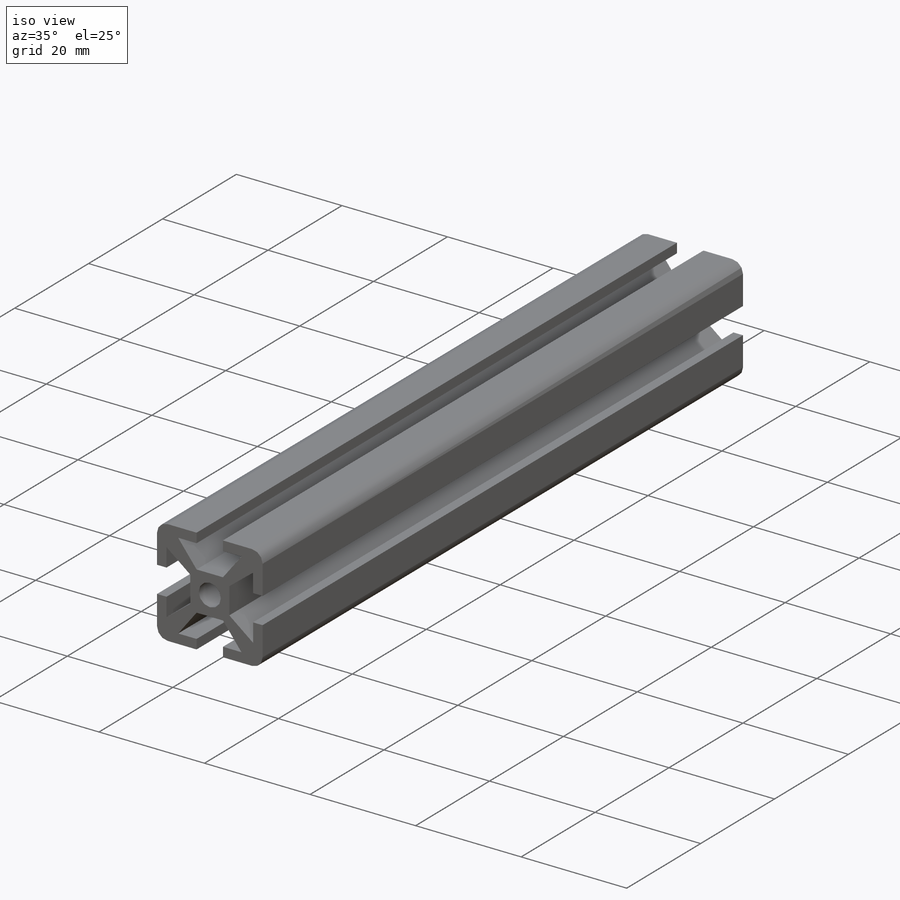
[diagram: iso view]
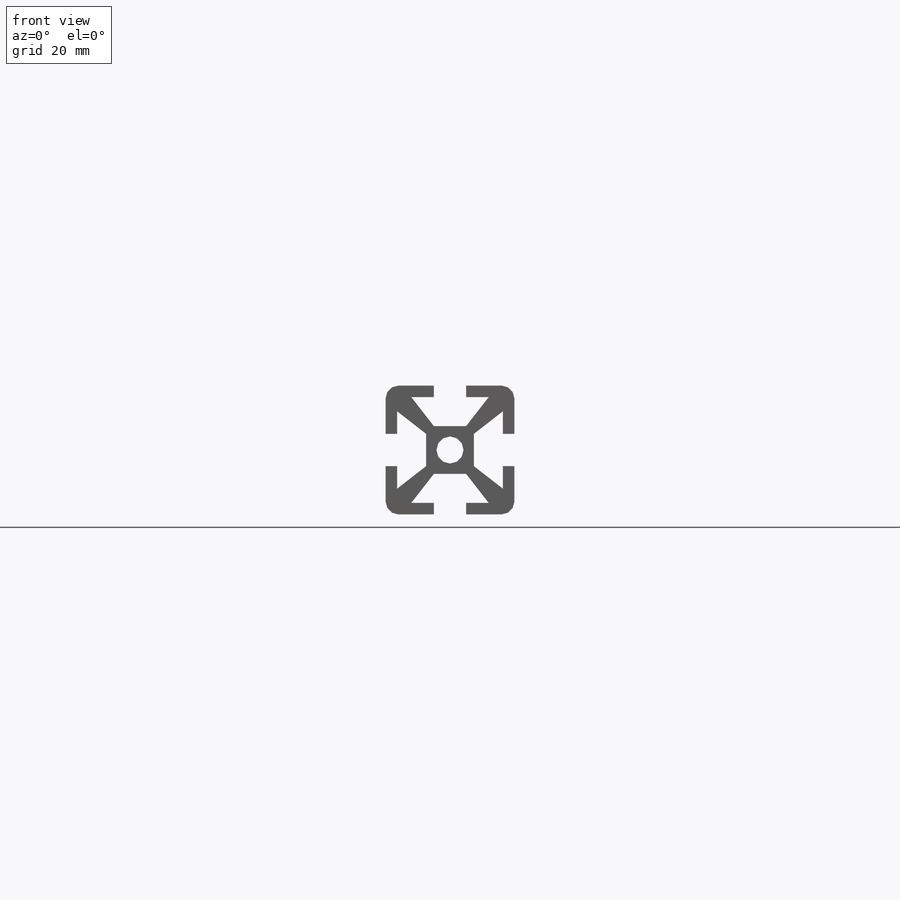
[diagram: front view]
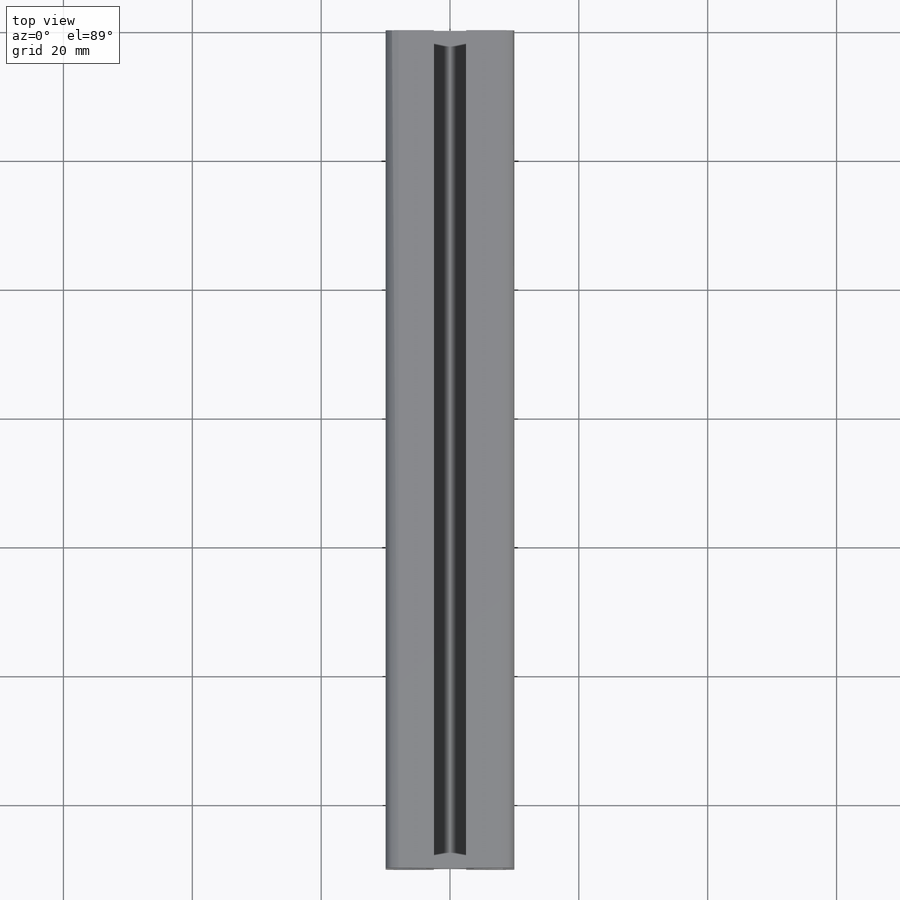
[diagram: top view]
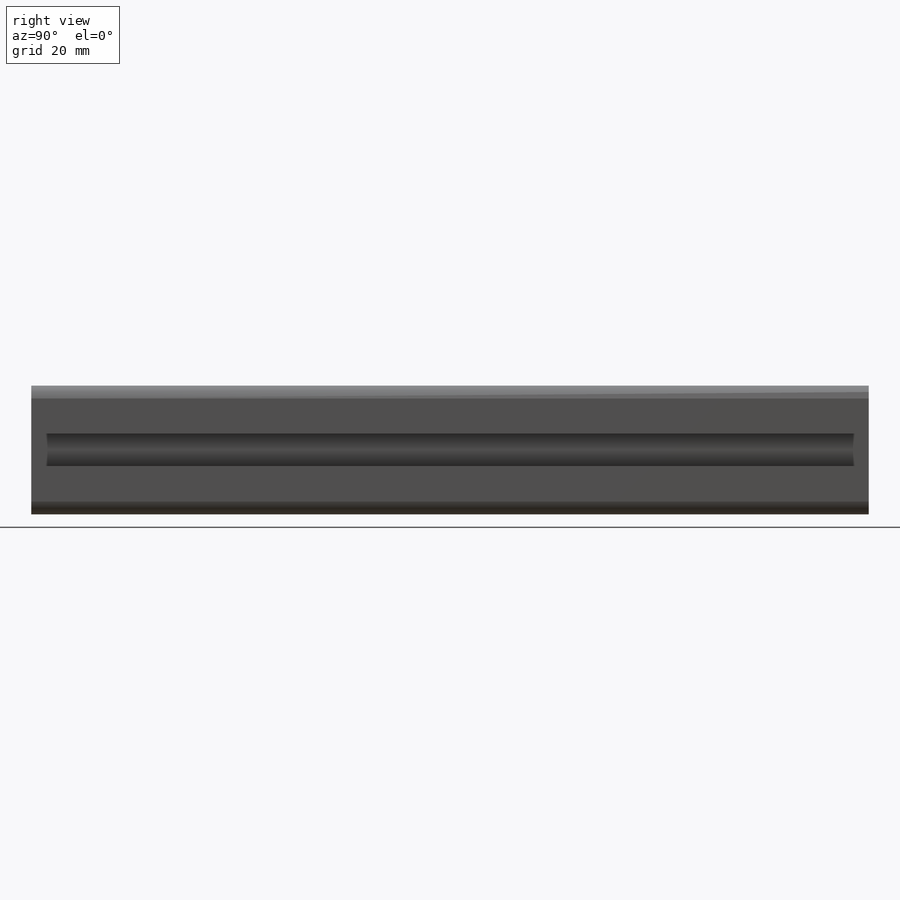
[diagram: right view]
SOLIDWORKS PART (.sldprt)
format: sldprt  version: not decoded by parser v0  size: 326,656 bytes
history: native  units: mm
features: sketch x6, cut_extrude x4, plane x3, material x1, extrude x1 (+8 scaffold rows collapsed)
feature tree (23):
  scaffold x8  (default folders/planes/origin — collapsed)
  material  "Matériau <non spécifié>"
  plane  "Plan de face"
  plane  "Plan de dessus"
  plane  "Plan de droite"
  sketch  "Esquisse1"  dims[c1.D1=2.0mm c1.D2=2.0mm c1.D4=2.0mm c1.D3=20.0mm c2.D4=20.0mm]
  extrude  "Extrusion1"  Depth=130mm
  sketch  "Esquisse2"  dims[D1=4.2mm]
  sketch  "Esquisse3"  dims[c1.D1=5.0mm c1.D2=1.8mm c1.D3=6.3mm c1.D4=12.0mm c2.D3=6.3mm c2.D5=5.0mm c2.D6=3.5mm]
  cut_extrude  "Enlèv. mat.-Extru.1"  Depth=300mm
  sketch  "Esquisse4"  dims[D1=5.0mm D2=5.0mm D3=1.8mm D4=6.3mm]
  sketch  "Esquisse5"  dims[D1=5.0mm D2=6.3mm D3=1.8mm D4=12.0mm]
  cut_extrude  "Enlèv. mat.-Extru.3"  Depth=300mm
  sketch  "Esquisse6"  dims[D1=6.3mm D2=12.0mm D3=1.8mm]
  cut_extrude  "Enlèv. mat.-Extru.4"  [1 undecoded]
  cut_extrude  "Enlèv. mat.-Extru.7"  [1 undecoded]
decode coverage: 9 of 11 modeling features carry decoded parameters
note: 2 parameter values undecoded
note: suppression state not decoded; provenance and decode notes live in map.json
